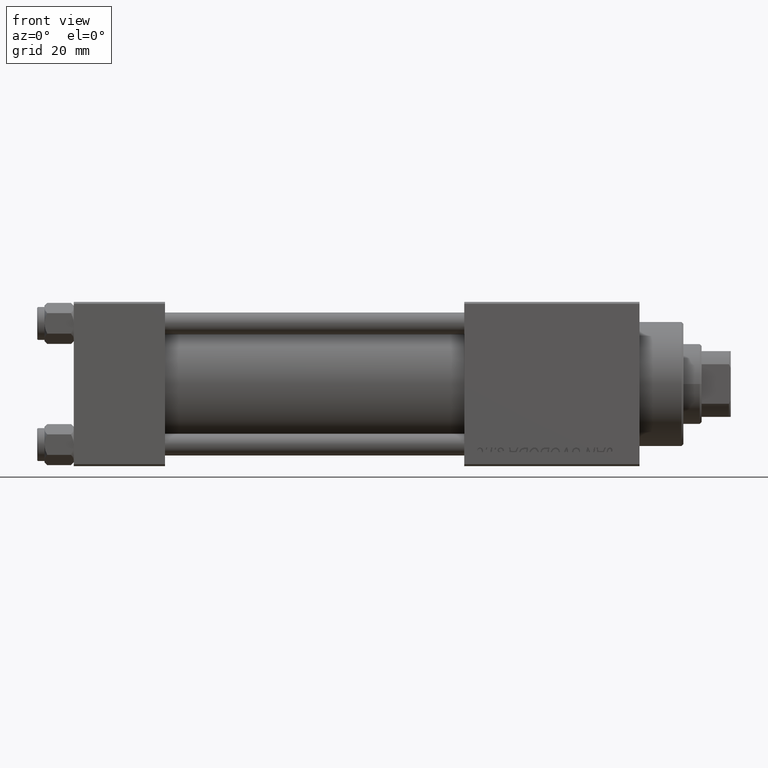
[diagram: clean part render]
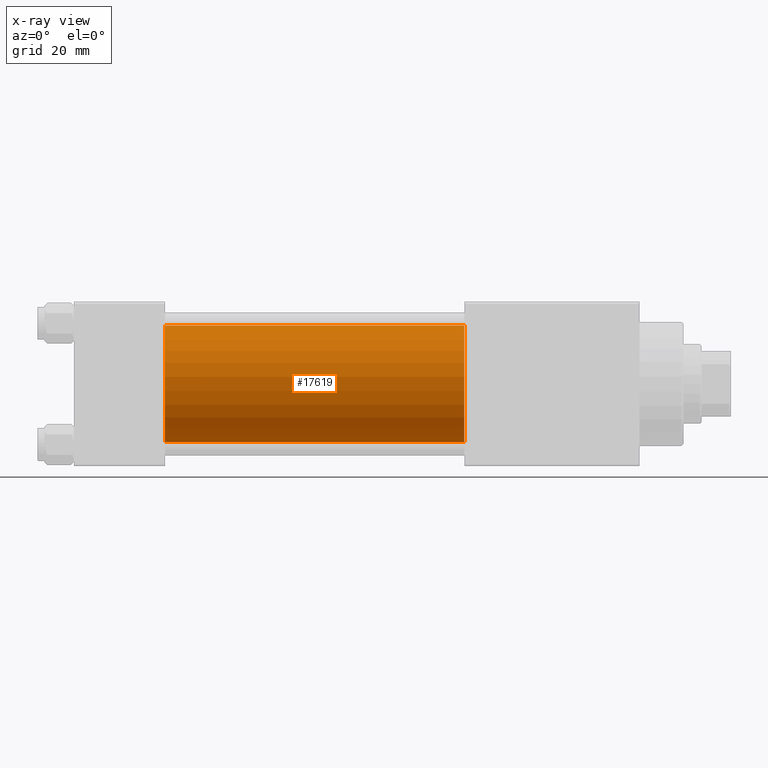
[diagram: x-ray — body ghosted, one internal face saturated and labeled with its STEP entity id]
A machine part, front view, then the same camera in x-ray: the body is ghosted and one INTERNAL B-rep face — a face not visible from any outside direction — is saturated and labeled: STEP entity #17619.
In plain terms, the highlighted cylindrical surface (partial cylindrical patch) has radius 16 mm, axis along (-1, -0, -0).
Its self-contained STEP definition (entity closure, byte-faithful):
#2677 = CARTESIAN_POINT ( 'NONE',  ( 25.00000000000000000, -2.602085213965210642E-15, 0.000000000000000000 ) ) ;
#5990 = DIRECTION ( 'NONE',  ( 0.000000000000000000, 0.000000000000000000, -1.000000000000000000 ) ) ;
#7439 = AXIS2_PLACEMENT_3D ( 'NONE', #2677, #36694, #5990 ) ;
#8680 = DIRECTION ( 'NONE',  ( -1.000000000000000000, -0.000000000000000000, -0.000000000000000000 ) ) ;
#10364 = CARTESIAN_POINT ( 'NONE',  ( 107.0000000000000142, -2.602085213965210642E-15, 16.00000000000000000 ) ) ;
#11343 = ORIENTED_EDGE ( 'NONE', *, *, #32070, .F. ) ;
#13375 = EDGE_CURVE ( 'NONE', #38115, #32907, #34610, .T. ) ;
#13560 = ORIENTED_EDGE ( 'NONE', *, *, #32993, .T. ) ;
#13780 = DIRECTION ( 'NONE',  ( 0.000000000000000000, 0.000000000000000000, -1.000000000000000000 ) ) ;
#15168 = ORIENTED_EDGE ( 'NONE', *, *, #16841, .F. ) ;
#16841 = EDGE_CURVE ( 'NONE', #38115, #29599, #45115, .T. ) ;
#17619 = ADVANCED_FACE ( 'NONE', ( #27983 ), #39382, .F. ) ;
#17917 = VERTEX_POINT ( 'NONE', #23868 ) ;
#19989 = CARTESIAN_POINT ( 'NONE',  ( 107.0000000000000142, -6.426503353294456087E-16, -16.00000000000000000 ) ) ;
#22533 = DIRECTION ( 'NONE',  ( -1.000000000000000000, -0.000000000000000000, -0.000000000000000000 ) ) ;
#23868 = CARTESIAN_POINT ( 'NONE',  ( 25.00000000000000000, -6.426503353294456087E-16, -16.00000000000000000 ) ) ;
#26407 = CARTESIAN_POINT ( 'NONE',  ( 25.00000000000000000, -2.602085213965210642E-15, 16.00000000000000000 ) ) ;
#26656 = AXIS2_PLACEMENT_3D ( 'NONE', #27720, #8680, #32037 ) ;
#27720 = CARTESIAN_POINT ( 'NONE',  ( 107.0000000000000142, -2.602085213965210642E-15, 0.000000000000000000 ) ) ;
#27786 = EDGE_LOOP ( 'NONE', ( #48337, #13560, #11343, #15168 ) ) ;
#27983 = FACE_OUTER_BOUND ( 'NONE', #27786, .T. ) ;
#29599 = VERTEX_POINT ( 'NONE', #26407 ) ;
#30796 = CARTESIAN_POINT ( 'NONE',  ( 107.0000000000000142, -6.426503353294456087E-16, -16.00000000000000000 ) ) ;
#32037 = DIRECTION ( 'NONE',  ( 0.000000000000000000, 0.000000000000000000, 1.000000000000000000 ) ) ;
#32070 = EDGE_CURVE ( 'NONE', #29599, #17917, #32572, .T. ) ;
#32076 = DIRECTION ( 'NONE',  ( 1.000000000000000000, 0.000000000000000000, 0.000000000000000000 ) ) ;
#32572 = CIRCLE ( 'NONE', #7439, 16.00000000000000000 ) ;
#32907 = VERTEX_POINT ( 'NONE', #19989 ) ;
#32993 = EDGE_CURVE ( 'NONE', #32907, #17917, #50048, .T. ) ;
#33418 = VECTOR ( 'NONE', #39651, 1000.000000000000000 ) ;
#34610 = CIRCLE ( 'NONE', #38660, 16.00000000000000000 ) ;
#35560 = VECTOR ( 'NONE', #22533, 1000.000000000000000 ) ;
#36694 = DIRECTION ( 'NONE',  ( 1.000000000000000000, 0.000000000000000000, 0.000000000000000000 ) ) ;
#36861 = CARTESIAN_POINT ( 'NONE',  ( 107.0000000000000142, -2.602085213965210642E-15, 0.000000000000000000 ) ) ;
#38115 = VERTEX_POINT ( 'NONE', #47262 ) ;
#38660 = AXIS2_PLACEMENT_3D ( 'NONE', #36861, #32076, #13780 ) ;
#39382 = CYLINDRICAL_SURFACE ( 'NONE', #26656, 16.00000000000000000 ) ;
#39651 = DIRECTION ( 'NONE',  ( -1.000000000000000000, -0.000000000000000000, -0.000000000000000000 ) ) ;
#45115 = LINE ( 'NONE', #10364, #35560 ) ;
#47262 = CARTESIAN_POINT ( 'NONE',  ( 107.0000000000000142, -2.602085213965210642E-15, 16.00000000000000000 ) ) ;
#48337 = ORIENTED_EDGE ( 'NONE', *, *, #13375, .T. ) ;
#50048 = LINE ( 'NONE', #30796, #33418 ) ;